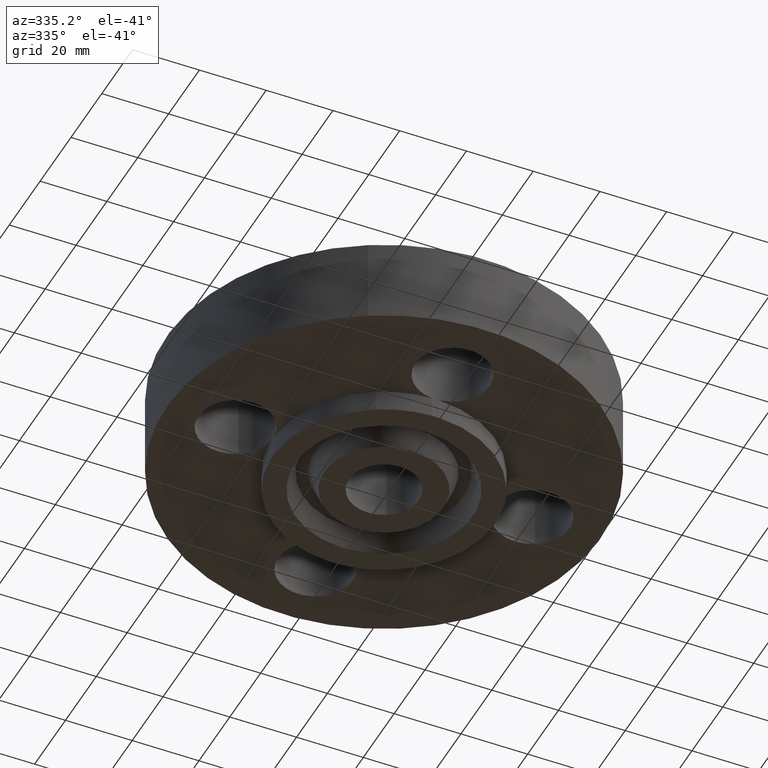
[diagram: clean part render]
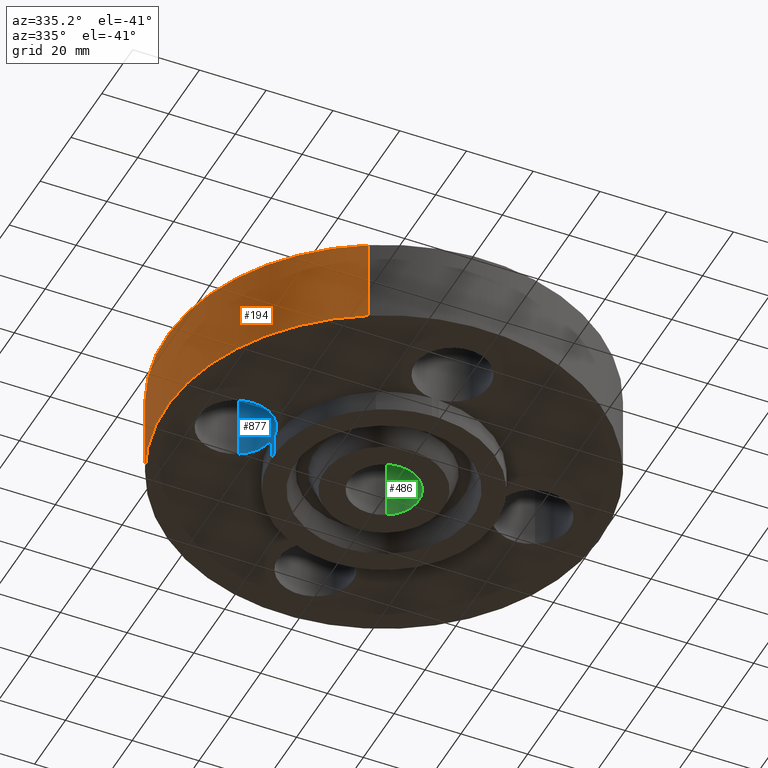
[diagram: same view with three faces highlighted in distinct colors, each labeled with its STEP entity id]
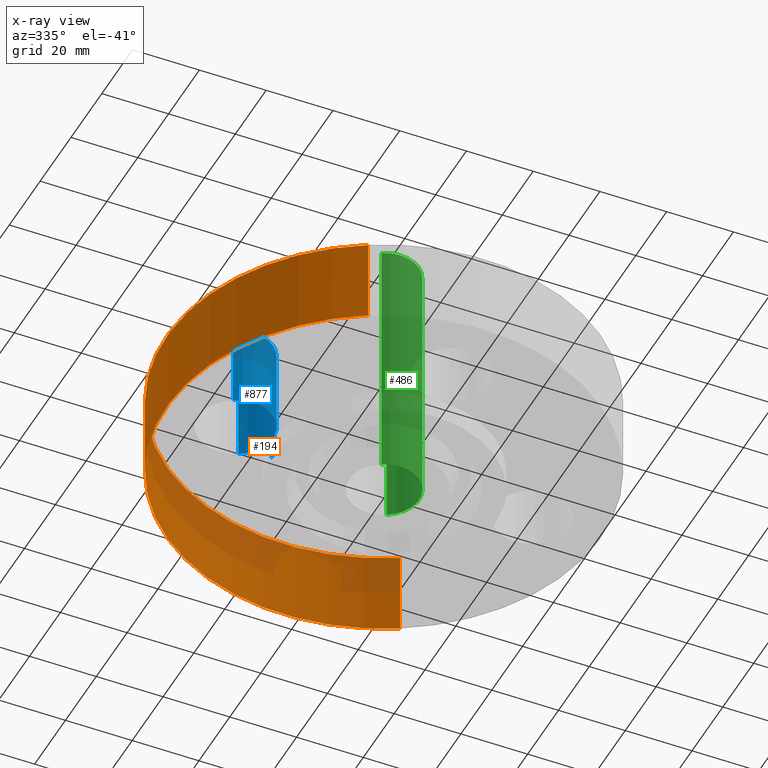
[diagram: x-ray of the same camera — body ghosted, the three highlighted faces saturated]
A machine part, auxiliary view with three faces highlighted in distinct colors.
The next image is the same camera in x-ray (body ghosted, the three faces saturated) — at least one of them is partly hidden behind the body in this view.
Their STEP definitions:

[orange] entity #194 — the highlighted cylindrical surface (partial cylindrical patch) has radius 65.024 mm, axis along (0, 0, -1).
#158=AXIS2_PLACEMENT_3D('Cylinder Axis2P3D',#155,#156,#157) ;
#162=AXIS2_PLACEMENT_3D('Circle Axis2P3D',#160,#161,$) ;
#178=AXIS2_PLACEMENT_3D('Circle Axis2P3D',#176,#177,$) ;
#155=CARTESIAN_POINT('Axis2P3D Location',(0.,0.,1.25000000001)) ;
#160=CARTESIAN_POINT('Axis2P3D Location',(0.,0.,1.39870617276E-016)) ;
#164=CARTESIAN_POINT('Vertex',(-1.22732937883,-2.24661135845,2.79741234551E-016)) ;
#166=CARTESIAN_POINT('Vertex',(1.22732937883,2.24661135845,2.79741234551E-016)) ;
#169=CARTESIAN_POINT('Line Origine',(-1.22732937883,-2.24661135845,0.500000000002)) ;
#173=CARTESIAN_POINT('Vertex',(-1.22732937883,-2.24661135845,1.)) ;
#176=CARTESIAN_POINT('Axis2P3D Location',(0.,0.,1.)) ;
#180=CARTESIAN_POINT('Vertex',(1.22732937883,2.24661135845,1.)) ;
#183=CARTESIAN_POINT('Line Origine',(1.22732937883,2.24661135845,0.500000000002)) ;
#156=DIRECTION('Axis2P3D Direction',(0.,0.,-0.0393700787402)) ;
#157=DIRECTION('Axis2P3D XDirection',(0.0188750212049,0.0345504945626,0.)) ;
#161=DIRECTION('Axis2P3D Direction',(0.,0.,-0.0393700787402)) ;
#170=DIRECTION('Vector Direction',(0.,0.,-0.0393700787402)) ;
#177=DIRECTION('Axis2P3D Direction',(0.,0.,-0.0393700787402)) ;
#184=DIRECTION('Vector Direction',(0.,0.,-0.0393700787402)) ;
#171=VECTOR('Line Direction',#170,0.0393700787402) ;
#185=VECTOR('Line Direction',#184,0.0393700787402) ;
#189=ORIENTED_EDGE('',*,*,#168,.F.) ;
#190=ORIENTED_EDGE('',*,*,#175,.T.) ;
#191=ORIENTED_EDGE('',*,*,#182,.T.) ;
#192=ORIENTED_EDGE('',*,*,#187,.F.) ;
#194=ADVANCED_FACE('PartBody',(#193),#159,.T.) ;
#163=CIRCLE('generated circle',#162,2.56000000001) ;
#179=CIRCLE('generated circle',#178,2.56000000001) ;
#159=CYLINDRICAL_SURFACE('generated cylinder',#158,2.56000000001) ;
#168=EDGE_CURVE('',#165,#167,#163,.T.) ;
#175=EDGE_CURVE('',#165,#174,#172,.F.) ;
#182=EDGE_CURVE('',#174,#181,#179,.T.) ;
#187=EDGE_CURVE('',#167,#181,#186,.F.) ;
#188=EDGE_LOOP('',(#189,#190,#191,#192)) ;
#193=FACE_OUTER_BOUND('',#188,.T.) ;
#172=LINE('Line',#169,#171) ;
#186=LINE('Line',#183,#185) ;
#165=VERTEX_POINT('',#164) ;
#167=VERTEX_POINT('',#166) ;
#174=VERTEX_POINT('',#173) ;
#181=VERTEX_POINT('',#180) ;

[blue] entity #877 — the highlighted cylindrical surface (partial cylindrical patch) has radius 11.176 mm, axis along (0, 0, -1).
#665=AXIS2_PLACEMENT_3D('Circle Axis2P3D',#663,#664,$) ;
#679=AXIS2_PLACEMENT_3D('Circle Axis2P3D',#677,#678,$) ;
#829=AXIS2_PLACEMENT_3D('Cylinder Axis2P3D',#826,#827,#828) ;
#859=AXIS2_PLACEMENT_3D('Circle Axis2P3D',#857,#858,$) ;
#864=AXIS2_PLACEMENT_3D('Circle Axis2P3D',#862,#863,$) ;
#493=CARTESIAN_POINT('Vertex',(-1.31187321429,-0.0405576089,-0.250000000001)) ;
#507=CARTESIAN_POINT('Vertex',(-1.31187321429,-0.0405576089,0.)) ;
#510=CARTESIAN_POINT('Line Origine',(-1.31187321429,-0.0405576089,-0.125000000001)) ;
#526=CARTESIAN_POINT('Vertex',(-1.31187321429,0.0405576089,0.)) ;
#533=CARTESIAN_POINT('Vertex',(-1.31187321429,0.0405576089,-0.250000000001)) ;
#536=CARTESIAN_POINT('Line Origine',(-1.31187321429,0.0405576089,-0.125000000001)) ;
#663=CARTESIAN_POINT('Axis2P3D Location',(-1.75000000001,-2.79741234551E-016,0.)) ;
#667=CARTESIAN_POINT('Vertex',(-1.53905276302,0.386136327233,0.)) ;
#674=CARTESIAN_POINT('Vertex',(-1.96094723699,-0.386136327233,0.)) ;
#677=CARTESIAN_POINT('Axis2P3D Location',(-1.75000000001,-2.79741234551E-016,0.)) ;
#826=CARTESIAN_POINT('Axis2P3D Location',(-1.75000000001,-3.21469784777E-016,0.99606299213)) ;
#831=CARTESIAN_POINT('Line Origine',(-1.96094723699,-0.386136327233,0.375000000001)) ;
#835=CARTESIAN_POINT('Vertex',(-1.96094723699,-0.386136327233,1.)) ;
#838=CARTESIAN_POINT('Line Origine',(-1.53905276302,0.386136327233,0.375000000001)) ;
#842=CARTESIAN_POINT('Vertex',(-1.53905276302,0.386136327233,1.)) ;
#857=CARTESIAN_POINT('Axis2P3D Location',(-1.75000000001,-3.21469784777E-016,-0.250000000001)) ;
#862=CARTESIAN_POINT('Axis2P3D Location',(-1.75000000001,-3.21469784777E-016,1.)) ;
#511=DIRECTION('Vector Direction',(0.,0.,-0.0393700787402)) ;
#537=DIRECTION('Vector Direction',(0.,0.,-0.0393700787402)) ;
#664=DIRECTION('Axis2P3D Direction',(0.,0.,-0.0393700787402)) ;
#678=DIRECTION('Axis2P3D Direction',(0.,0.,-0.0393700787402)) ;
#827=DIRECTION('Axis2P3D Direction',(0.,0.,-0.0393700787402)) ;
#828=DIRECTION('Axis2P3D XDirection',(0.0188750212049,0.0345504945626,0.)) ;
#832=DIRECTION('Vector Direction',(0.,0.,-0.0393700787402)) ;
#839=DIRECTION('Vector Direction',(0.,0.,-0.0393700787402)) ;
#858=DIRECTION('Axis2P3D Direction',(0.,0.,-0.0393700787402)) ;
#863=DIRECTION('Axis2P3D Direction',(0.,0.,-0.0393700787402)) ;
#512=VECTOR('Line Direction',#511,0.0393700787402) ;
#538=VECTOR('Line Direction',#537,0.0393700787402) ;
#833=VECTOR('Line Direction',#832,0.0393700787402) ;
#840=VECTOR('Line Direction',#839,0.0393700787402) ;
#868=ORIENTED_EDGE('',*,*,#844,.F.) ;
#869=ORIENTED_EDGE('',*,*,#669,.T.) ;
#870=ORIENTED_EDGE('',*,*,#540,.T.) ;
#871=ORIENTED_EDGE('',*,*,#861,.T.) ;
#872=ORIENTED_EDGE('',*,*,#514,.F.) ;
#873=ORIENTED_EDGE('',*,*,#681,.T.) ;
#874=ORIENTED_EDGE('',*,*,#837,.T.) ;
#875=ORIENTED_EDGE('',*,*,#866,.F.) ;
#877=ADVANCED_FACE('PartBody',(#876),#830,.F.) ;
#666=CIRCLE('generated circle',#665,0.440000000002) ;
#680=CIRCLE('generated circle',#679,0.440000000002) ;
#860=CIRCLE('generated circle',#859,0.440000000002) ;
#865=CIRCLE('generated circle',#864,0.440000000002) ;
#830=CYLINDRICAL_SURFACE('generated cylinder',#829,0.440000000002) ;
#514=EDGE_CURVE('',#508,#494,#513,.T.) ;
#540=EDGE_CURVE('',#527,#534,#539,.T.) ;
#669=EDGE_CURVE('',#668,#527,#666,.T.) ;
#681=EDGE_CURVE('',#508,#675,#680,.T.) ;
#837=EDGE_CURVE('',#675,#836,#834,.F.) ;
#844=EDGE_CURVE('',#668,#843,#841,.F.) ;
#861=EDGE_CURVE('',#534,#494,#860,.T.) ;
#866=EDGE_CURVE('',#843,#836,#865,.T.) ;
#867=EDGE_LOOP('',(#868,#869,#870,#871,#872,#873,#874,#875)) ;
#876=FACE_OUTER_BOUND('',#867,.T.) ;
#513=LINE('Line',#510,#512) ;
#539=LINE('Line',#536,#538) ;
#834=LINE('Line',#831,#833) ;
#841=LINE('Line',#838,#840) ;
#494=VERTEX_POINT('',#493) ;
#508=VERTEX_POINT('',#507) ;
#527=VERTEX_POINT('',#526) ;
#534=VERTEX_POINT('',#533) ;
#668=VERTEX_POINT('',#667) ;
#675=VERTEX_POINT('',#674) ;
#836=VERTEX_POINT('',#835) ;
#843=VERTEX_POINT('',#842) ;

[green] entity #486 — the highlighted cylindrical surface (partial cylindrical patch) has radius 10.4648 mm, axis along (0, 0, -1).
#428=AXIS2_PLACEMENT_3D('Circle Axis2P3D',#426,#427,$) ;
#447=AXIS2_PLACEMENT_3D('Cylinder Axis2P3D',#444,#445,#446) ;
#477=AXIS2_PLACEMENT_3D('Circle Axis2P3D',#475,#476,$) ;
#421=CARTESIAN_POINT('Vertex',(-0.197523321906,-0.3615640155,2.75000000001)) ;
#423=CARTESIAN_POINT('Vertex',(0.197523321906,0.3615640155,2.75000000001)) ;
#426=CARTESIAN_POINT('Axis2P3D Location',(0.,0.,2.75000000001)) ;
#444=CARTESIAN_POINT('Axis2P3D Location',(0.,0.,1.25000000001)) ;
#449=CARTESIAN_POINT('Line Origine',(-0.197523321906,-0.3615640155,1.25)) ;
#453=CARTESIAN_POINT('Vertex',(-0.197523321906,-0.3615640155,-0.250000000001)) ;
#460=CARTESIAN_POINT('Vertex',(0.197523321906,0.3615640155,-0.250000000001)) ;
#463=CARTESIAN_POINT('Line Origine',(0.197523321906,0.3615640155,1.25)) ;
#475=CARTESIAN_POINT('Axis2P3D Location',(0.,0.,-0.250000000001)) ;
#427=DIRECTION('Axis2P3D Direction',(0.,0.,-0.0393700787402)) ;
#445=DIRECTION('Axis2P3D Direction',(0.,0.,-0.0393700787402)) ;
#446=DIRECTION('Axis2P3D XDirection',(0.0188750212049,0.0345504945626,0.)) ;
#450=DIRECTION('Vector Direction',(0.,0.,-0.0393700787402)) ;
#464=DIRECTION('Vector Direction',(0.,0.,-0.0393700787402)) ;
#476=DIRECTION('Axis2P3D Direction',(0.,0.,-0.0393700787402)) ;
#451=VECTOR('Line Direction',#450,0.0393700787402) ;
#465=VECTOR('Line Direction',#464,0.0393700787402) ;
#481=ORIENTED_EDGE('',*,*,#430,.F.) ;
#482=ORIENTED_EDGE('',*,*,#467,.T.) ;
#483=ORIENTED_EDGE('',*,*,#479,.T.) ;
#484=ORIENTED_EDGE('',*,*,#455,.F.) ;
#486=ADVANCED_FACE('PartBody',(#485),#448,.F.) ;
#429=CIRCLE('generated circle',#428,0.412000000002) ;
#478=CIRCLE('generated circle',#477,0.412000000002) ;
#448=CYLINDRICAL_SURFACE('generated cylinder',#447,0.412000000002) ;
#430=EDGE_CURVE('',#424,#422,#429,.T.) ;
#455=EDGE_CURVE('',#422,#454,#452,.T.) ;
#467=EDGE_CURVE('',#424,#461,#466,.T.) ;
#479=EDGE_CURVE('',#461,#454,#478,.T.) ;
#480=EDGE_LOOP('',(#481,#482,#483,#484)) ;
#485=FACE_OUTER_BOUND('',#480,.T.) ;
#452=LINE('Line',#449,#451) ;
#466=LINE('Line',#463,#465) ;
#422=VERTEX_POINT('',#421) ;
#424=VERTEX_POINT('',#423) ;
#454=VERTEX_POINT('',#453) ;
#461=VERTEX_POINT('',#460) ;